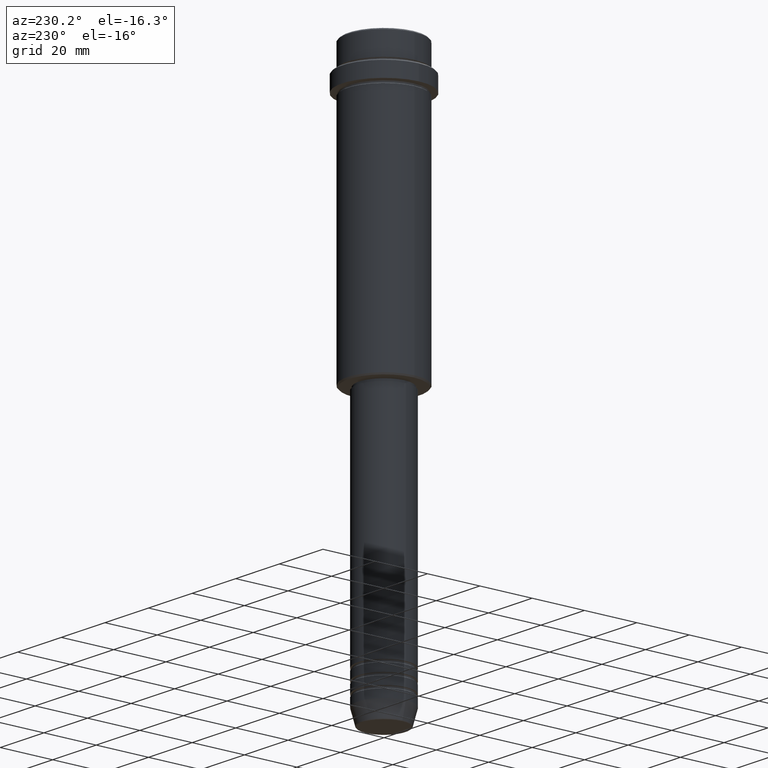
[diagram: clean part render]
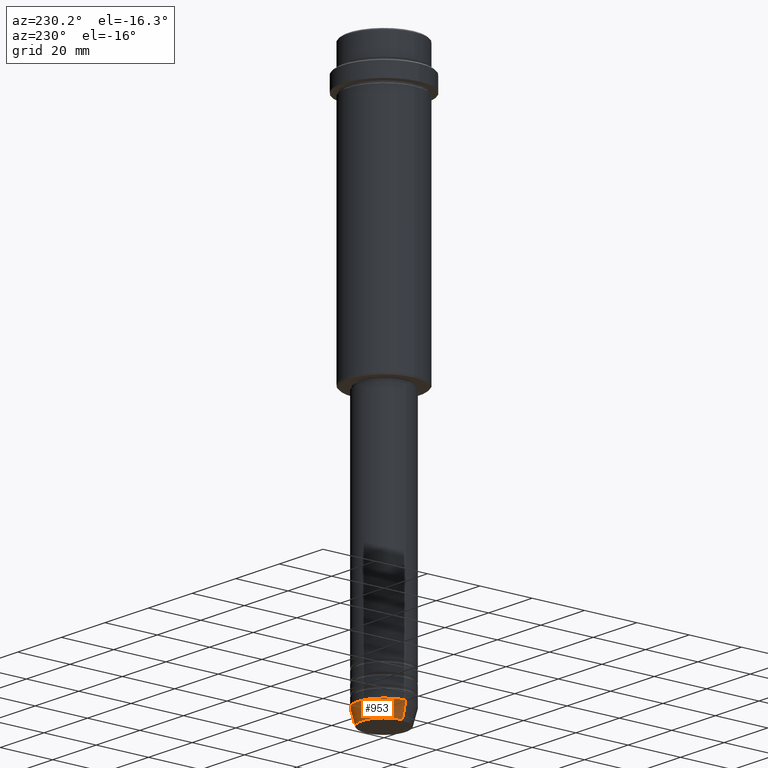
[diagram: same view with one face highlighted and labeled with its STEP entity id]
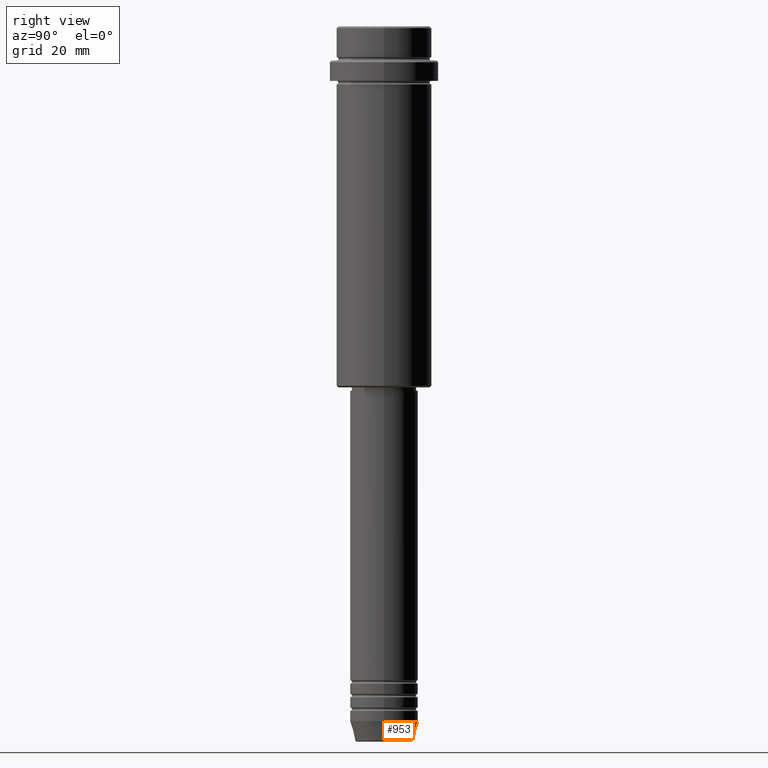
[diagram: same view with one face highlighted and labeled with its STEP entity id]
A machine part, auxiliary view. The second image highlights one B-rep face of the part: STEP entity #953.
A second angle (right view) of the same face is appended — the face is thin or edge-on in the first view.
In plain terms, the highlighted conical surface has half-angle 15 deg.
Its self-contained STEP definition (entity closure, byte-faithful):
#47 = CARTESIAN_POINT ( 'NONE',  ( 0.000000000000000000, 0.000000000000000000, -209.6294095225512990 ) ) ;
#95 = CARTESIAN_POINT ( 'NONE',  ( 0.000000000000000000, 0.000000000000000000, -204.0000000000000284 ) ) ;
#98 = ORIENTED_EDGE ( 'NONE', *, *, #284, .F. ) ;
#106 = CONICAL_SURFACE ( 'NONE', #1074, 10.00000000000000000, 0.2617993877991498519 ) ;
#110 = EDGE_CURVE ( 'NONE', #1259, #1088, #1143, .T. ) ;
#223 = CARTESIAN_POINT ( 'NONE',  ( -8.491604264568309191, 1.132284198685156387E-15, -209.6294095225512990 ) ) ;
#247 = DIRECTION ( 'NONE',  ( -0.2588190451025211281, 3.169619151431769872E-17, 0.9659258262890680902 ) ) ;
#251 = DIRECTION ( 'NONE',  ( -0.000000000000000000, -0.000000000000000000, 1.000000000000000000 ) ) ;
#275 = VERTEX_POINT ( 'NONE', #223 ) ;
#284 = EDGE_CURVE ( 'NONE', #1088, #521, #916, .T. ) ;
#328 = CARTESIAN_POINT ( 'NONE',  ( -10.00000000000000000, 1.224646799147353256E-15, -204.0000000000000284 ) ) ;
#330 = AXIS2_PLACEMENT_3D ( 'NONE', #47, #665, #674 ) ;
#375 = AXIS2_PLACEMENT_3D ( 'NONE', #782, #251, #676 ) ;
#521 = VERTEX_POINT ( 'NONE', #1256 ) ;
#598 = FACE_OUTER_BOUND ( 'NONE', #1230, .T. ) ;
#665 = DIRECTION ( 'NONE',  ( -0.000000000000000000, -0.000000000000000000, 1.000000000000000000 ) ) ;
#674 = DIRECTION ( 'NONE',  ( 1.000000000000000000, 0.000000000000000000, 0.000000000000000000 ) ) ;
#676 = DIRECTION ( 'NONE',  ( 1.000000000000000000, 0.000000000000000000, 0.000000000000000000 ) ) ;
#677 = ORIENTED_EDGE ( 'NONE', *, *, #110, .F. ) ;
#693 = CARTESIAN_POINT ( 'NONE',  ( 10.00000000000000000, 0.000000000000000000, -204.0000000000000284 ) ) ;
#733 = DIRECTION ( 'NONE',  ( -0.000000000000000000, -0.000000000000000000, 1.000000000000000000 ) ) ;
#741 = DIRECTION ( 'NONE',  ( 1.000000000000000000, 0.000000000000000000, 0.000000000000000000 ) ) ;
#782 = CARTESIAN_POINT ( 'NONE',  ( 0.000000000000000000, 0.000000000000000000, -204.0000000000000284 ) ) ;
#803 = CIRCLE ( 'NONE', #330, 8.491604264568309191 ) ;
#823 = VECTOR ( 'NONE', #919, 1000.000000000000114 ) ;
#829 = CARTESIAN_POINT ( 'NONE',  ( 10.00000000000000000, 0.000000000000000000, -204.0000000000000284 ) ) ;
#857 = EDGE_CURVE ( 'NONE', #1259, #275, #803, .T. ) ;
#916 = CIRCLE ( 'NONE', #375, 10.00000000000000000 ) ;
#919 = DIRECTION ( 'NONE',  ( 0.2588190451025211281, 0.000000000000000000, 0.9659258262890680902 ) ) ;
#940 = CARTESIAN_POINT ( 'NONE',  ( 8.491604264568309191, 0.000000000000000000, -209.6294095225512990 ) ) ;
#943 = ORIENTED_EDGE ( 'NONE', *, *, #857, .T. ) ;
#953 = ADVANCED_FACE ( 'NONE', ( #598 ), #106, .T. ) ;
#1030 = VECTOR ( 'NONE', #247, 1000.000000000000114 ) ;
#1074 = AXIS2_PLACEMENT_3D ( 'NONE', #95, #733, #741 ) ;
#1088 = VERTEX_POINT ( 'NONE', #693 ) ;
#1143 = LINE ( 'NONE', #829, #823 ) ;
#1180 = ORIENTED_EDGE ( 'NONE', *, *, #1297, .T. ) ;
#1215 = LINE ( 'NONE', #328, #1030 ) ;
#1230 = EDGE_LOOP ( 'NONE', ( #943, #1180, #98, #677 ) ) ;
#1256 = CARTESIAN_POINT ( 'NONE',  ( -10.00000000000000000, 1.224646799147353256E-15, -204.0000000000000284 ) ) ;
#1259 = VERTEX_POINT ( 'NONE', #940 ) ;
#1297 = EDGE_CURVE ( 'NONE', #275, #521, #1215, .T. ) ;